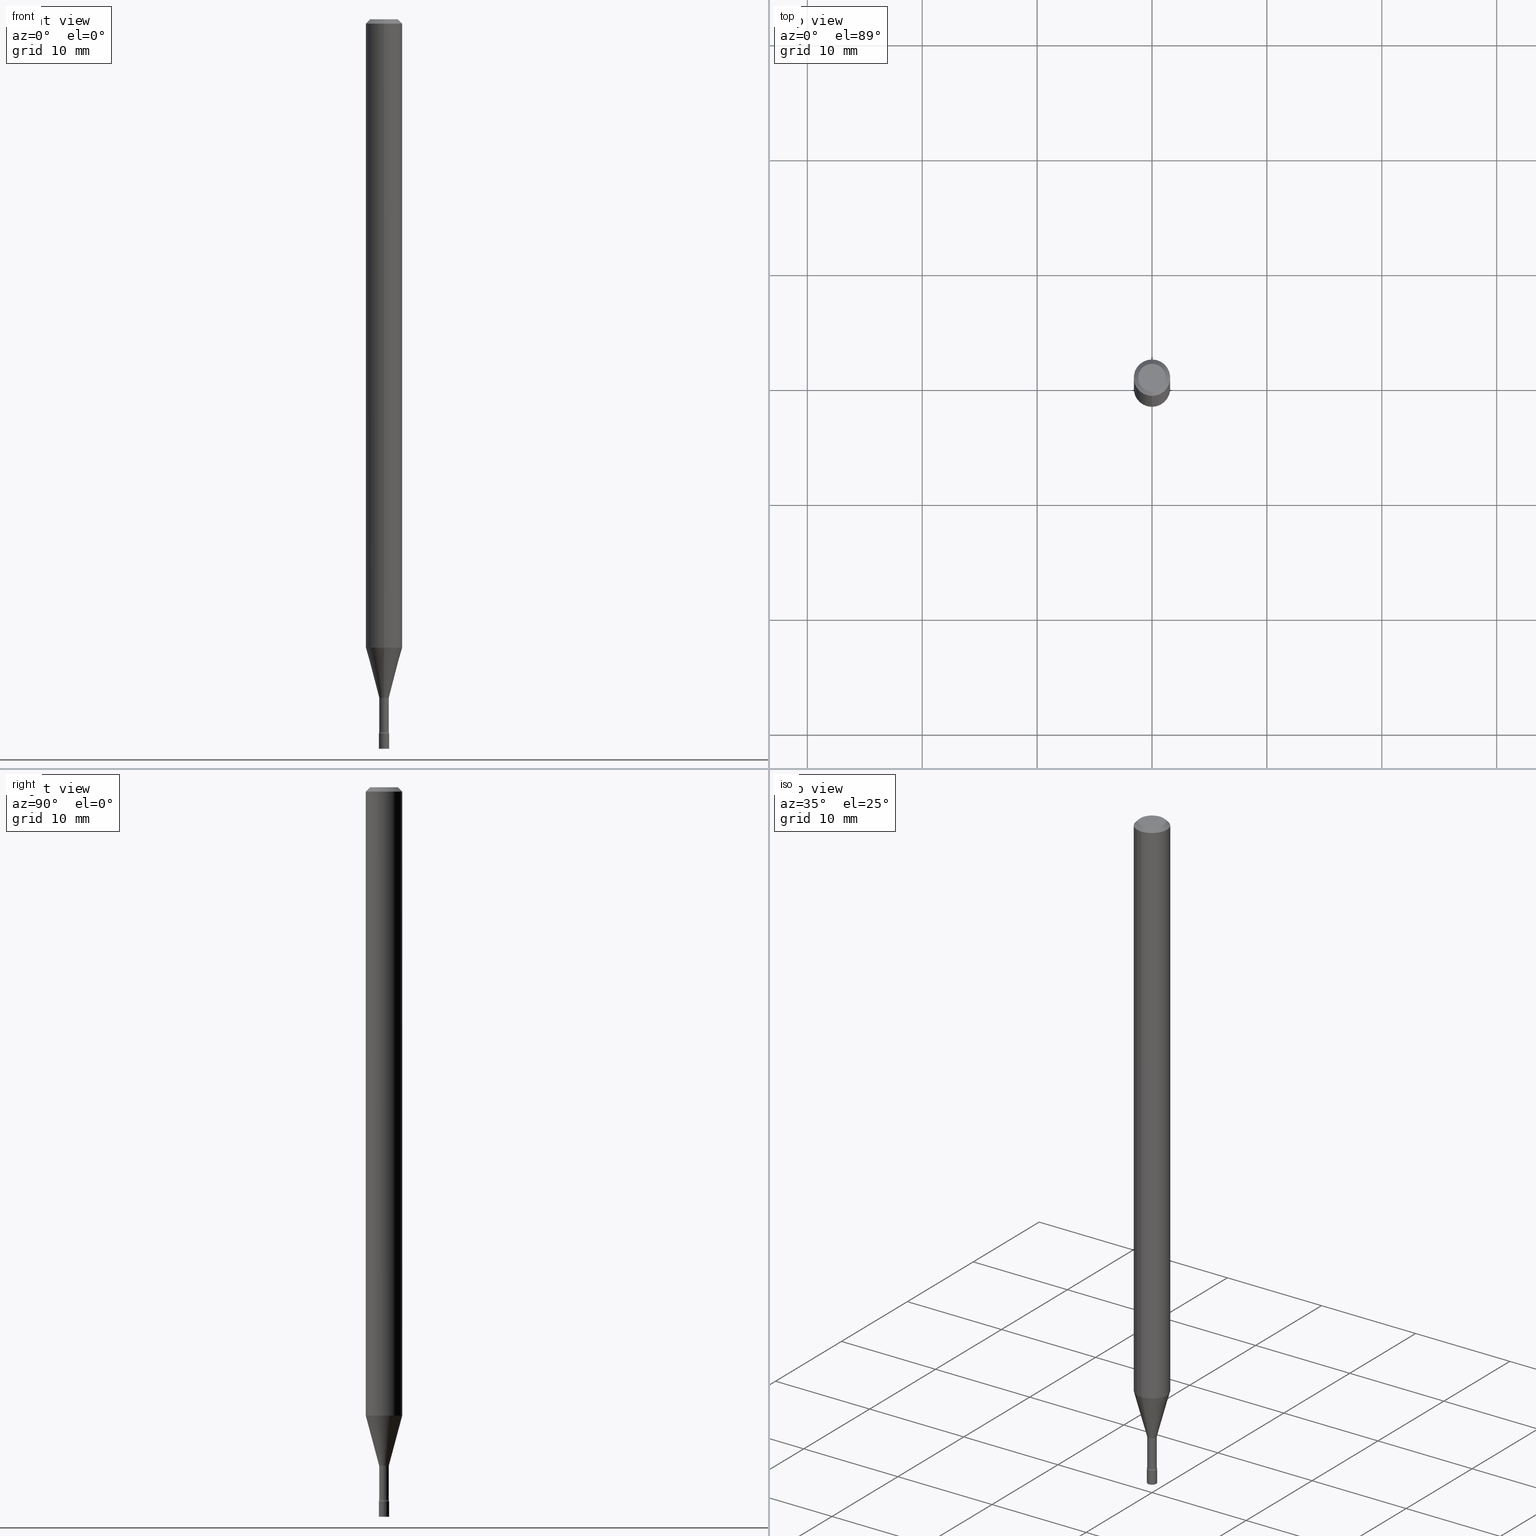
[diagram: canonical four-view strip — front | top / right | iso, engineering-drawing reading convention]
A machine part, canonical four-view strip (front | top / right | iso — engineering-drawing reading convention). The complete STEP part file that produces these views, byte-faithful:
ISO-10303-21;
HEADER;
FILE_DESCRIPTION (( 'STEP AP203' ),
    '1' );
FILE_NAME ('03541.STEP',
    '2024-03-08T21:43:57',
    ( '' ),
    ( '' ),
    'SwSTEP 2.0',
    'SolidWorks 2023',
    '' );
FILE_SCHEMA (( 'CONFIG_CONTROL_DESIGN' ));
ENDSEC;

DATA;
#1 = DIRECTION ( 'NONE',  ( -6.982962677686265922E-15, -1.000000000000000000, 3.491470771135924375E-15 ) ) ;
#2 = DIRECTION ( 'NONE',  ( -2.445468806185136597E-29, 3.491481338843145583E-15, 1.000000000000000000 ) ) ;
#3 = CARTESIAN_POINT ( 'NONE',  ( -4.364351673553912750E-16, -0.06250000000000005551, -0.01499999999999981209 ) ) ;
#4 = DIRECTION ( 'NONE',  ( -2.445476185575647876E-29, 3.491470771135924769E-15, 1.000000000000000000 ) ) ;
#5 = EDGE_CURVE ( 'NONE', #127, #144, #159, .T. ) ;
#6 = DIRECTION ( 'NONE',  ( -6.982962677686266711E-15, -1.000000000000000000, 3.491470771135925164E-15 ) ) ;
#7 = VECTOR ( 'NONE', #475, 39.37007874015748143 ) ;
#8 = DIRECTION ( 'NONE',  ( -6.982962677686265922E-15, -1.000000000000000000, 4.370956789862821150E-15 ) ) ;
#9 = ORIENTED_EDGE ( 'NONE', *, *, #43, .F. ) ;
#10 = APPROVAL ( #152, 'UNSPECIFIED' ) ;
#11 = DIRECTION ( 'NONE',  ( -2.445476185575647876E-29, 3.491470771135924769E-15, 1.000000000000000000 ) ) ;
#12 = ORIENTED_EDGE ( 'NONE', *, *, #337, .T. ) ;
#13 = PLANE ( 'NONE',  #517 ) ;
#14 = CIRCLE ( 'NONE', #182, 0.06250000000000000000 ) ;
#15 = CARTESIAN_POINT ( 'NONE',  ( -4.287811248607203282E-16, -0.06250000000000005551, -0.01499999999999981209 ) ) ;
#16 = CIRCLE ( 'NONE', #155, 0.01750000000000000167 ) ;
#17 = DIRECTION ( 'NONE',  ( 6.982962677686265922E-15, 1.000000000000000000, -3.483106191921935554E-15 ) ) ;
#18 = EDGE_LOOP ( 'NONE', ( #300, #107, #12, #484 ) ) ;
#19 = CARTESIAN_POINT ( 'NONE',  ( 0.000000000000000000, 0.000000000000000000, 0.000000000000000000 ) ) ;
#20 = CC_DESIGN_DATE_AND_TIME_ASSIGNMENT ( #503, #312, ( #372 ) ) ;
#21 = EDGE_LOOP ( 'NONE', ( #505, #139 ) ) ;
#22 = ORIENTED_EDGE ( 'NONE', *, *, #442, .F. ) ;
#23 = PERSON_AND_ORGANIZATION_ROLE ( 'creator' ) ;
#24 = ORIENTED_EDGE ( 'NONE', *, *, #392, .F. ) ;
#25 = CC_DESIGN_PERSON_AND_ORGANIZATION_ASSIGNMENT ( #148, #234, ( #508 ) ) ;
#26 = CARTESIAN_POINT ( 'NONE',  ( 7.070950815208551376E-46, -1.009538274838240143E-31, -2.891441289396199718E-17 ) ) ;
#27 = CALENDAR_DATE ( 2024, 8, 3 ) ;
#28 = DIRECTION ( 'NONE',  ( 1.000000000000000000, -6.982962677686303787E-15, 0.000000000000000000 ) ) ;
#29 = AXIS2_PLACEMENT_3D ( 'NONE', #479, #399, #1 ) ;
#30 = COORDINATED_UNIVERSAL_TIME_OFFSET ( 5, 0, .BEHIND. ) ;
#31 = CARTESIAN_POINT ( 'NONE',  ( -3.773273898774340269E-16, -0.04749999999999999362, 1.369304487349944422E-16 ) ) ;
#32 = ORIENTED_EDGE ( 'NONE', *, *, #418, .T. ) ;
#33 = FACE_OUTER_BOUND ( 'NONE', #374, .T. ) ;
#34 = CC_DESIGN_DATE_AND_TIME_ASSIGNMENT ( #224, #377, ( #370 ) ) ;
#35 = CARTESIAN_POINT ( 'NONE',  ( 4.440892098501149768E-16, 0.06249999999999247130, -2.153139060311453967 ) ) ;
#36 = DIRECTION ( 'NONE',  ( -6.982962677686265922E-15, -1.000000000000000000, 3.483106191921935554E-15 ) ) ;
#37 = VECTOR ( 'NONE', #168, 39.37007874015748143 ) ;
#38 = CLOSED_SHELL ( 'NONE', ( #417, #514, #518, #315, #272, #282, #53, #158, #421, #94, #396, #286, #196, #306 ) ) ;
#39 = CC_DESIGN_APPROVAL ( #298, ( #372 ) ) ;
#40 = DIRECTION ( 'NONE',  ( 1.000000000000000000, -6.982962677686248567E-15, 0.000000000000000000 ) ) ;
#41 = CYLINDRICAL_SURFACE ( 'NONE', #309, 0.01645000000000002710 ) ;
#42 = LINE ( 'NONE', #209, #244 ) ;
#43 = EDGE_CURVE ( 'NONE', #127, #129, #326, .T. ) ;
#44 = ORIENTED_EDGE ( 'NONE', *, *, #132, .T. ) ;
#45 = CARTESIAN_POINT ( 'NONE',  ( -1.148697360479392489E-16, -0.01645000000000002710, 5.743469418518606024E-17 ) ) ;
#46 = ORIENTED_EDGE ( 'NONE', *, *, #151, .F. ) ;
#47 = DIRECTION ( 'NONE',  ( -6.982962677686265133E-15, -1.000000000000000000, 3.491470771135924769E-15 ) ) ;
#48 = AXIS2_PLACEMENT_3D ( 'NONE', #283, #440, #436 ) ;
#49 = ORIENTED_EDGE ( 'NONE', *, *, #217, .T. ) ;
#50 = CARTESIAN_POINT ( 'NONE',  ( 4.440892098500625669E-16, 0.06250000000000000000, -2.182169231959952734E-16 ) ) ;
#51 = ORIENTED_EDGE ( 'NONE', *, *, #428, .T. ) ;
#52 = VERTEX_POINT ( 'NONE', #313 ) ;
#53 = ADVANCED_FACE ( 'NONE', ( #425 ), #67, .T. ) ;
#54 = CYLINDRICAL_SURFACE ( 'NONE', #96, 0.01645000000000002710 ) ;
#55 = FACE_OUTER_BOUND ( 'NONE', #72, .T. ) ;
#56 = AXIS2_PLACEMENT_3D ( 'NONE', #412, #497, #487 ) ;
#57 = AXIS2_PLACEMENT_3D ( 'NONE', #119, #470, #232 ) ;
#58 = DIRECTION ( 'NONE',  ( 7.105427357601000281E-15, 1.000000000000000000, 0.000000000000000000 ) ) ;
#59 = EDGE_CURVE ( 'NONE', #403, #71, #391, .T. ) ;
#60 = DIRECTION ( 'NONE',  ( -6.982962677686266711E-15, -1.000000000000000000, 0.000000000000000000 ) ) ;
#61 = EDGE_LOOP ( 'NONE', ( #364, #219, #443, #216 ) ) ;
#62 = APPLICATION_CONTEXT ( 'configuration controlled 3d designs of mechanical parts and assemblies' ) ;
#63 = CALENDAR_DATE ( 2024, 8, 3 ) ;
#64 = APPLICATION_PROTOCOL_DEFINITION ( 'international standard', 'config_control_design', 1994, #62 ) ;
#65 = VERTEX_POINT ( 'NONE', #31 ) ;
#66 = VECTOR ( 'NONE', #165, 39.37007874015748143 ) ;
#67 = CONICAL_SURFACE ( 'NONE', #198, 0.01696111260566397771, 0.2617993877991496299 ) ;
#68 = AXIS2_PLACEMENT_3D ( 'NONE', #223, #247, #449 ) ;
#69 =( NAMED_UNIT ( * ) PLANE_ANGLE_UNIT ( ) SI_UNIT ( $, .RADIAN. ) );
#70 = DIRECTION ( 'NONE',  ( -2.445476185575647876E-29, 3.491470771135924769E-15, 1.000000000000000000 ) ) ;
#71 = VERTEX_POINT ( 'NONE', #254 ) ;
#72 = EDGE_LOOP ( 'NONE', ( #339, #481, #191, #378 ) ) ;
#73 = CIRCLE ( 'NONE', #270, 0.01645000000000005833 ) ;
#74 = APPROVAL ( #420, 'UNSPECIFIED' ) ;
#75 = CARTESIAN_POINT ( 'NONE',  ( 7.070950815208551376E-46, -1.009538274838240143E-31, -2.891441289396199718E-17 ) ) ;
#76 = PERSON ( 'UNSPECIFIED', 'UNSPECIFIED', 'UNSPECIFIED', ('UNSPECIFIED'), ('UNSPECIFIED'), ('UNSPECIFIED') ) ;
#77 = DIRECTION ( 'NONE',  ( -6.982962677686265133E-15, -1.000000000000000000, 3.491470771135924769E-15 ) ) ;
#78 = PLANE ( 'NONE',  #222 ) ;
#79 = CC_DESIGN_APPROVAL ( #10, ( #333 ) ) ;
#80 = EDGE_CURVE ( 'NONE', #233, #251, #137, .T. ) ;
#81 = LOCAL_TIME ( 16, 43, 57.00000000000000000, #149 ) ;
#82 = FACE_OUTER_BOUND ( 'NONE', #61, .T. ) ;
#83 = FACE_OUTER_BOUND ( 'NONE', #345, .T. ) ;
#84 = EDGE_LOOP ( 'NONE', ( #458, #44, #213, #24 ) ) ;
#85 = DIRECTION ( 'NONE',  ( -2.445468806185136877E-29, 3.491481338843145188E-15, 1.000000000000000000 ) ) ;
#86 = DIRECTION ( 'NONE',  ( -2.445468806185136597E-29, 3.491481338843145583E-15, 1.000000000000000000 ) ) ;
#87 = AXIS2_PLACEMENT_3D ( 'NONE', #111, #150, #157 ) ;
#88 = ORIENTED_EDGE ( 'NONE', *, *, #43, .T. ) ;
#89 = CARTESIAN_POINT ( 'NONE',  ( -2.196141762131761410E-16, -0.03145000000000811730, -2.326974787463811367 ) ) ;
#90 = EDGE_CURVE ( 'NONE', #233, #264, #73, .T. ) ;
#91 = FACE_OUTER_BOUND ( 'NONE', #461, .T. ) ;
#92 = CARTESIAN_POINT ( 'NONE',  ( -4.364351673553390622E-16, -0.06250000000000753564, -2.153139060311453079 ) ) ;
#93 = ORIENTED_EDGE ( 'NONE', *, *, #408, .T. ) ;
#94 = ADVANCED_FACE ( 'NONE', ( #303 ), #381, .F. ) ;
#95 = DIRECTION ( 'NONE',  ( -6.982962677686265133E-15, -1.000000000000000000, 3.491470771135924769E-15 ) ) ;
#96 = AXIS2_PLACEMENT_3D ( 'NONE', #218, #375, #47 ) ;
#97 = EDGE_LOOP ( 'NONE', ( #122, #250, #362, #446 ) ) ;
#98 = PERSON_AND_ORGANIZATION_ROLE ( 'classification_officer' ) ;
#99 = ADVANCED_BREP_SHAPE_REPRESENTATION ( '03541', ( #382, #231, #205 ), #138 ) ;
#100 = SECURITY_CLASSIFICATION_LEVEL ( 'unclassified' ) ;
#101 = EDGE_CURVE ( 'NONE', #71, #403, #115, .T. ) ;
#102 = ORIENTED_EDGE ( 'NONE', *, *, #59, .F. ) ;
#103 = AXIS2_PLACEMENT_3D ( 'NONE', #176, #11, #95 ) ;
#104 = CIRCLE ( 'NONE', #281, 0.04749999999999999362 ) ;
#105 = LOCAL_TIME ( 16, 43, 57.00000000000000000, #30 ) ;
#106 = APPROVAL_ROLE ( '' ) ;
#107 = ORIENTED_EDGE ( 'NONE', *, *, #151, .T. ) ;
#108 = DESIGN_CONTEXT ( 'detailed design', #385, 'design' ) ;
#109 = ORIENTED_EDGE ( 'NONE', *, *, #405, .F. ) ;
#110 =( LENGTH_UNIT ( ) NAMED_UNIT ( * ) SI_UNIT ( $, .METRE. ) );
#111 = CARTESIAN_POINT ( 'NONE',  ( 3.316907271900976096E-16, 0.04749999999999999362, -1.803020680759374010E-16 ) ) ;
#112 = DIRECTION ( 'NONE',  ( -2.445476185575647876E-29, 3.491470771135924769E-15, 1.000000000000000000 ) ) ;
#113 = DIRECTION ( 'NONE',  ( -2.445476185575647876E-29, 3.491470771135924769E-15, 1.000000000000000000 ) ) ;
#114 = CC_DESIGN_PERSON_AND_ORGANIZATION_ASSIGNMENT ( #304, #23, ( #372 ) ) ;
#115 = CIRCLE ( 'NONE', #265, 0.01696111260566397771 ) ;
#116 = SHAPE_DEFINITION_REPRESENTATION ( #354, #99 ) ;
#117 = DIRECTION ( 'NONE',  ( -2.445476185575647876E-29, 3.491470771135924769E-15, 1.000000000000000000 ) ) ;
#118 = LINE ( 'NONE', #274, #37 ) ;
#119 = CARTESIAN_POINT ( 'NONE',  ( 0.000000000000000000, 0.000000000000000000, 0.000000000000000000 ) ) ;
#120 = EDGE_CURVE ( 'NONE', #491, #251, #409, .T. ) ;
#121 = DIRECTION ( 'NONE',  ( -2.445476185575647876E-29, 3.491470771135924769E-15, 1.000000000000000000 ) ) ;
#122 = ORIENTED_EDGE ( 'NONE', *, *, #473, .F. ) ;
#123 = TOROIDAL_SURFACE ( 'NONE', #103, 0.03144999999999999185, 0.01500000000000002373 ) ;
#124 = AXIS2_PLACEMENT_3D ( 'NONE', #318, #316, #241 ) ;
#125 = CARTESIAN_POINT ( 'NONE',  ( 5.681067390010129749E-29, -8.111009568635295199E-15, -2.323092501787273445 ) ) ;
#126 = CARTESIAN_POINT ( 'NONE',  ( -0.01750000000000000167, -8.511834112870504850E-15, -2.500000000000000000 ) ) ;
#127 = VERTEX_POINT ( 'NONE', #126 ) ;
#128 = CARTESIAN_POINT ( 'NONE',  ( 4.364351673553919652E-16, 0.06249999999999995143, -0.01500000000000024751 ) ) ;
#129 = VERTEX_POINT ( 'NONE', #249 ) ;
#130 = ORIENTED_EDGE ( 'NONE', *, *, #132, .F. ) ;
#131 = FACE_OUTER_BOUND ( 'NONE', #486, .T. ) ;
#132 = EDGE_CURVE ( 'NONE', #65, #342, #368, .T. ) ;
#133 = ORIENTED_EDGE ( 'NONE', *, *, #120, .F. ) ;
#134 = DIRECTION ( 'NONE',  ( -4.851104656540964275E-15, -0.7071067811865500152, -0.7071067811865450192 ) ) ;
#135 = CIRCLE ( 'NONE', #230, 0.01644999999999999588 ) ;
#136 = DIRECTION ( 'NONE',  ( 1.000000000000000000, -6.982962677686265922E-15, 4.876176775795936353E-29 ) ) ;
#137 = CIRCLE ( 'NONE', #492, 0.01499999999999995087 ) ;
#138 =( GEOMETRIC_REPRESENTATION_CONTEXT ( 3 ) GLOBAL_UNCERTAINTY_ASSIGNED_CONTEXT ( ( #269 ) ) GLOBAL_UNIT_ASSIGNED_CONTEXT ( ( #468, #69, #343 ) ) REPRESENTATION_CONTEXT ( 'NONE', 'WORKASPACE' ) );
#139 = ORIENTED_EDGE ( 'NONE', *, *, #225, .T. ) ;
#140 = DIRECTION ( 'NONE',  ( -2.445476185575647876E-29, 3.491470771135924769E-15, 1.000000000000000000 ) ) ;
#141 = DIMENSIONAL_EXPONENTS ( 1.000000000000000000, 0.000000000000000000, 0.000000000000000000, 0.000000000000000000, 0.000000000000000000, 0.000000000000000000, 0.000000000000000000 ) ;
#142 = EDGE_CURVE ( 'NONE', #71, #194, #437, .T. ) ;
#143 = DIRECTION ( 'NONE',  ( -2.445476185575647876E-29, 3.491470771135924769E-15, 1.000000000000000000 ) ) ;
#144 = VERTEX_POINT ( 'NONE', #373 ) ;
#145 = CARTESIAN_POINT ( 'NONE',  ( 3.668214278363478611E-31, -5.237206156703897582E-17, -0.01500000000000003067 ) ) ;
#146 = CONICAL_SURFACE ( 'NONE', #499, 0.01696111260566397771, 0.2617993877991496299 ) ;
#147 = ORIENTED_EDGE ( 'NONE', *, *, #457, .T. ) ;
#148 = PERSON_AND_ORGANIZATION ( #76, #493 ) ;
#149 = COORDINATED_UNIVERSAL_TIME_OFFSET ( 5, 0, .BEHIND. ) ;
#150 = DIRECTION ( 'NONE',  ( 2.445476185575647596E-29, -3.491470771135924375E-15, -1.000000000000000000 ) ) ;
#151 = EDGE_CURVE ( 'NONE', #264, #233, #332, .T. ) ;
#152 = APPROVAL_STATUS ( 'not_yet_approved' ) ;
#153 = LOCAL_TIME ( 16, 43, 57.00000000000000000, #259 ) ;
#154 = LINE ( 'NONE', #465, #173 ) ;
#155 = AXIS2_PLACEMENT_3D ( 'NONE', #287, #86, #294 ) ;
#156 = PERSON_AND_ORGANIZATION ( #76, #493 ) ;
#157 = DIRECTION ( 'NONE',  ( 6.982962677686265922E-15, 1.000000000000000000, -3.491470771135924375E-15 ) ) ;
#158 = ADVANCED_FACE ( 'NONE', ( #416 ), #402, .T. ) ;
#159 = LINE ( 'NONE', #460, #163 ) ;
#160 = APPROVAL_DATE_TIME ( #506, #298 ) ;
#161 = ORIENTED_EDGE ( 'NONE', *, *, #482, .T. ) ;
#162 = FACE_OUTER_BOUND ( 'NONE', #171, .T. ) ;
#163 = VECTOR ( 'NONE', #208, 39.37007874015748143 ) ;
#164 = CONICAL_SURFACE ( 'NONE', #389, 0.06250000000000000000, 0.7853981633974483900 ) ;
#165 = DIRECTION ( 'NONE',  ( -2.445476185575647596E-29, 3.491470771135924375E-15, 1.000000000000000000 ) ) ;
#166 = FACE_OUTER_BOUND ( 'NONE', #21, .T. ) ;
#167 = ORIENTED_EDGE ( 'NONE', *, *, #5, .T. ) ;
#168 = DIRECTION ( 'NONE',  ( -2.445476185575647596E-29, 3.491470771135924375E-15, 1.000000000000000000 ) ) ;
#169 = DIRECTION ( 'NONE',  ( -6.982962677686265922E-15, -1.000000000000000000, 0.000000000000000000 ) ) ;
#170 = EDGE_LOOP ( 'NONE', ( #293, #49, #192, #109 ) ) ;
#171 = EDGE_LOOP ( 'NONE', ( #22, #9 ) ) ;
#172 = CIRCLE ( 'NONE', #227, 0.06250000000000000000 ) ;
#173 = VECTOR ( 'NONE', #426, 39.37007874015748143 ) ;
#174 = CARTESIAN_POINT ( 'NONE',  ( 5.265450296224388314E-29, -7.517622095268511377E-15, -2.153139060311453523 ) ) ;
#175 = CC_DESIGN_PERSON_AND_ORGANIZATION_ASSIGNMENT ( #314, #98, ( #370 ) ) ;
#176 = CARTESIAN_POINT ( 'NONE',  ( 5.690544255522038745E-29, -8.124589046388391174E-15, -2.326974787463811367 ) ) ;
#177 = ORIENTED_EDGE ( 'NONE', *, *, #344, .F. ) ;
#178 = DIRECTION ( 'NONE',  ( 1.000000000000000000, -7.105427357601001070E-15, 4.926315379124993940E-29 ) ) ;
#179 = AXIS2_PLACEMENT_3D ( 'NONE', #253, #383, #501 ) ;
#180 = DIRECTION ( 'NONE',  ( -1.807323732225325801E-15, -0.2588190451025175753, 0.9659258262890690894 ) ) ;
#181 = AXIS2_PLACEMENT_3D ( 'NONE', #296, #258, #60 ) ;
#182 = AXIS2_PLACEMENT_3D ( 'NONE', #444, #140, #8 ) ;
#183 = EDGE_CURVE ( 'NONE', #65, #411, #104, .T. ) ;
#184 = CARTESIAN_POINT ( 'NONE',  ( 5.690561427177704998E-29, -8.124564455600127919E-15, -2.326974787463811367 ) ) ;
#185 = ORIENTED_EDGE ( 'NONE', *, *, #344, .T. ) ;
#186 = EDGE_LOOP ( 'NONE', ( #235, #279, #387, #424 ) ) ;
#187 = EDGE_CURVE ( 'NONE', #477, #342, #154, .T. ) ;
#188 = DIRECTION ( 'NONE',  ( 1.000000000000000000, 0.000000000000000000, 0.000000000000000000 ) ) ;
#189 = TOROIDAL_SURFACE ( 'NONE', #445, 0.03144999999999999185, 0.01500000000000002373 ) ;
#190 = EDGE_LOOP ( 'NONE', ( #130, #177, #297, #51 ) ) ;
#191 = ORIENTED_EDGE ( 'NONE', *, *, #467, .F. ) ;
#192 = ORIENTED_EDGE ( 'NONE', *, *, #418, .F. ) ;
#193 = DIRECTION ( 'NONE',  ( -6.982962677686269077E-15, -1.000000000000000000, 0.000000000000000000 ) ) ;
#194 = VERTEX_POINT ( 'NONE', #516 ) ;
#195 = AXIS2_PLACEMENT_3D ( 'NONE', #19, #331, #136 ) ;
#196 = ADVANCED_FACE ( 'NONE', ( #319 ), #41, .T. ) ;
#197 = EDGE_LOOP ( 'NONE', ( #32, #510, #330, #308 ) ) ;
#198 = AXIS2_PLACEMENT_3D ( 'NONE', #323, #70, #386 ) ;
#199 = PERSON_AND_ORGANIZATION ( #76, #493 ) ;
#200 = DIRECTION ( 'NONE',  ( -1.000000000000000000, 6.982962677686265922E-15, -4.876176775795935793E-29 ) ) ;
#201 = LINE ( 'NONE', #45, #66 ) ;
#202 = TOROIDAL_SURFACE ( 'NONE', #179, 0.03145000000000001267, 0.01499999999999995261 ) ;
#203 = CC_DESIGN_APPROVAL ( #74, ( #370 ) ) ;
#204 = AXIS2_PLACEMENT_3D ( 'NONE', #469, #112, #390 ) ;
#205 = AXIS2_PLACEMENT_3D ( 'NONE', #236, #340, #188 ) ;
#206 = CARTESIAN_POINT ( 'NONE',  ( -1.222018468594496105E-16, -0.01750000000000851916, -2.447000000000000064 ) ) ;
#207 = DIRECTION ( 'NONE',  ( -6.982962677686266711E-15, -1.000000000000000000, 0.000000000000000000 ) ) ;
#208 = DIRECTION ( 'NONE',  ( -2.445468806185136877E-29, 3.491481338843145188E-15, 1.000000000000000000 ) ) ;
#209 = CARTESIAN_POINT ( 'NONE',  ( 0.01750000000000000167, -1.222018468595096625E-16, 8.533309357642889039E-31 ) ) ;
#210 = DIRECTION ( 'NONE',  ( -2.438088387897960049E-29, 3.491481338843145188E-15, 1.000000000000000000 ) ) ;
#211 = EDGE_CURVE ( 'NONE', #342, #52, #349, .T. ) ;
#212 = AXIS2_PLACEMENT_3D ( 'NONE', #89, #335, #495 ) ;
#213 = ORIENTED_EDGE ( 'NONE', *, *, #211, .T. ) ;
#214 = CYLINDRICAL_SURFACE ( 'NONE', #195, 0.01750000000000000167 ) ;
#215 = VERTEX_POINT ( 'NONE', #275 ) ;
#216 = ORIENTED_EDGE ( 'NONE', *, *, #467, .T. ) ;
#217 = EDGE_CURVE ( 'NONE', #403, #226, #434, .T. ) ;
#218 = CARTESIAN_POINT ( 'NONE',  ( 0.000000000000000000, 0.000000000000000000, 0.000000000000000000 ) ) ;
#219 = ORIENTED_EDGE ( 'NONE', *, *, #101, .F. ) ;
#220 = LOCAL_TIME ( 16, 43, 57.00000000000000000, #352 ) ;
#221 = DIRECTION ( 'NONE',  ( -2.445476185575647596E-29, 3.491470771135924375E-15, 1.000000000000000000 ) ) ;
#222 = AXIS2_PLACEMENT_3D ( 'NONE', #358, #433, #200 ) ;
#223 = CARTESIAN_POINT ( 'NONE',  ( 5.984080226103611058E-29, -8.543628976969608717E-15, -2.447000000000000064 ) ) ;
#224 = DATE_AND_TIME ( #63, #153 ) ;
#225 = EDGE_CURVE ( 'NONE', #144, #215, #480, .T. ) ;
#226 = VERTEX_POINT ( 'NONE', #35 ) ;
#227 = AXIS2_PLACEMENT_3D ( 'NONE', #174, #441, #327 ) ;
#228 = PERSON_AND_ORGANIZATION_ROLE ( 'creator' ) ;
#229 = AXIS2_PLACEMENT_3D ( 'NONE', #237, #2, #28 ) ;
#230 = AXIS2_PLACEMENT_3D ( 'NONE', #184, #410, #248 ) ;
#231 = MANIFOLD_SOLID_BREP ( 'Body-Move/Copy2[2]', #38 ) ;
#232 = DIRECTION ( 'NONE',  ( -6.982962677686265922E-15, -1.000000000000000000, 3.491470771135924375E-15 ) ) ;
#233 = VERTEX_POINT ( 'NONE', #520 ) ;
#234 = PERSON_AND_ORGANIZATION_ROLE ( 'design_owner' ) ;
#235 = ORIENTED_EDGE ( 'NONE', *, *, #217, .F. ) ;
#236 = CARTESIAN_POINT ( 'NONE',  ( 0.000000000000000000, 0.000000000000000000, 0.000000000000000000 ) ) ;
#237 = CARTESIAN_POINT ( 'NONE',  ( 6.113672015462842613E-29, -8.728703347107864943E-15, -2.500000000000000000 ) ) ;
#238 = APPROVAL_ROLE ( '' ) ;
#239 = FACE_OUTER_BOUND ( 'NONE', #170, .T. ) ;
#240 = DIRECTION ( 'NONE',  ( -2.445476185575647876E-29, 3.491470771135924769E-15, 1.000000000000000000 ) ) ;
#241 = DIRECTION ( 'NONE',  ( 1.000000000000000000, -6.982962677686265922E-15, 4.876176775795936353E-29 ) ) ;
#242 = CIRCLE ( 'NONE', #68, 0.01750000000000000167 ) ;
#243 = AXIS2_PLACEMENT_3D ( 'NONE', #321, #4, #169 ) ;
#244 = VECTOR ( 'NONE', #85, 39.37007874015748143 ) ;
#245 = CARTESIAN_POINT ( 'NONE',  ( 5.690544255522038745E-29, -8.124589046388391174E-15, -2.326974787463811367 ) ) ;
#246 = ADVANCED_FACE ( 'NONE', ( #162 ), #78, .T. ) ;
#247 = DIRECTION ( 'NONE',  ( -2.445476185575647876E-29, 3.491470771135924769E-15, 1.000000000000000000 ) ) ;
#248 = DIRECTION ( 'NONE',  ( -6.982962677686265922E-15, -1.000000000000000000, 0.000000000000000000 ) ) ;
#249 = CARTESIAN_POINT ( 'NONE',  ( 0.01750000000000000167, -8.850905193967374926E-15, -2.500000000000000000 ) ) ;
#250 = ORIENTED_EDGE ( 'NONE', *, *, #359, .T. ) ;
#251 = VERTEX_POINT ( 'NONE', #206 ) ;
#252 = PRODUCT_RELATED_PRODUCT_CATEGORY ( 'detail', '', ( #508 ) ) ;
#253 = CARTESIAN_POINT ( 'NONE',  ( 5.970579338663442113E-29, -8.524404928127174921E-15, -2.441486607215153537 ) ) ;
#254 = CARTESIAN_POINT ( 'NONE',  ( -1.184388162973287936E-16, -0.01696111260567208581, -2.323092501787273445 ) ) ;
#255 = FACE_OUTER_BOUND ( 'NONE', #310, .T. ) ;
#256 = DIRECTION ( 'NONE',  ( 2.445476185575647876E-29, -3.491470771135924769E-15, -1.000000000000000000 ) ) ;
#257 = AXIS2_PLACEMENT_3D ( 'NONE', #476, #210, #363 ) ;
#258 = DIRECTION ( 'NONE',  ( -2.445476185575647876E-29, 3.491470771135924769E-15, 1.000000000000000000 ) ) ;
#259 = COORDINATED_UNIVERSAL_TIME_OFFSET ( 5, 0, .BEHIND. ) ;
#260 = ADVANCED_FACE ( 'NONE', ( #404 ), #515, .T. ) ;
#261 = PERSON_AND_ORGANIZATION ( #76, #493 ) ;
#262 = EDGE_LOOP ( 'NONE', ( #466, #167, #288, #341 ) ) ;
#263 = AXIS2_PLACEMENT_3D ( 'NONE', #75, #472, #6 ) ;
#264 = VERTEX_POINT ( 'NONE', #324 ) ;
#265 = AXIS2_PLACEMENT_3D ( 'NONE', #305, #507, #207 ) ;
#266 = APPROVAL_PERSON_ORGANIZATION ( #156, #298, #106 ) ;
#267 = ORIENTED_EDGE ( 'NONE', *, *, #120, .T. ) ;
#268 = MECHANICAL_CONTEXT ( 'NONE', #62, 'mechanical' ) ;
#269 = UNCERTAINTY_MEASURE_WITH_UNIT (LENGTH_MEASURE( 1.000000000000000082E-05 ), #468, 'distance_accuracy_value', 'NONE');
#270 = AXIS2_PLACEMENT_3D ( 'NONE', #429, #502, #504 ) ;
#271 = DIRECTION ( 'NONE',  ( -6.982962677686265133E-15, -1.000000000000000000, 3.491470771135924769E-15 ) ) ;
#272 = ADVANCED_FACE ( 'NONE', ( #355 ), #471, .T. ) ;
#273 = CARTESIAN_POINT ( 'NONE',  ( 3.668214278363478611E-31, -5.237206156703897582E-17, -0.01500000000000003067 ) ) ;
#274 = CARTESIAN_POINT ( 'NONE',  ( 1.168842800325366485E-16, 0.01645000000000002710, -5.743469418518606024E-17 ) ) ;
#275 = CARTESIAN_POINT ( 'NONE',  ( 0.01750000000000000167, -8.665856683008687659E-15, -2.447000000000000064 ) ) ;
#276 = ADVANCED_FACE ( 'NONE', ( #166 ), #320, .T. ) ;
#277 = DIRECTION ( 'NONE',  ( -6.982962677686266711E-15, -1.000000000000000000, 0.000000000000000000 ) ) ;
#278 = CIRCLE ( 'NONE', #263, 0.04749999999999999362 ) ;
#279 = ORIENTED_EDGE ( 'NONE', *, *, #59, .T. ) ;
#280 = DIRECTION ( 'NONE',  ( -2.445468806185136597E-29, 3.491481338843145583E-15, 1.000000000000000000 ) ) ;
#281 = AXIS2_PLACEMENT_3D ( 'NONE', #26, #113, #419 ) ;
#282 = ADVANCED_FACE ( 'NONE', ( #239 ), #146, .T. ) ;
#283 = CARTESIAN_POINT ( 'NONE',  ( 5.970579338663442113E-29, -8.524404928127174921E-15, -2.441486607215153537 ) ) ;
#284 = ORIENTED_EDGE ( 'NONE', *, *, #142, .F. ) ;
#285 = FACE_OUTER_BOUND ( 'NONE', #84, .T. ) ;
#286 = ADVANCED_FACE ( 'NONE', ( #83 ), #365, .F. ) ;
#287 = CARTESIAN_POINT ( 'NONE',  ( 6.113672015462842613E-29, -8.728703347107864943E-15, -2.500000000000000000 ) ) ;
#288 = ORIENTED_EDGE ( 'NONE', *, *, #431, .F. ) ;
#289 = ORIENTED_EDGE ( 'NONE', *, *, #500, .F. ) ;
#290 = CONICAL_SURFACE ( 'NONE', #414, 0.06250000000000000000, 0.7853981633974483900 ) ;
#291 = CIRCLE ( 'NONE', #478, 0.01499999999999995087 ) ;
#292 = CARTESIAN_POINT ( 'NONE',  ( 1.243449787580772020E-16, 0.01749999999999143213, -2.447000000000000064 ) ) ;
#293 = ORIENTED_EDGE ( 'NONE', *, *, #101, .T. ) ;
#294 = DIRECTION ( 'NONE',  ( 1.000000000000000000, -6.982962677686303787E-15, 0.000000000000000000 ) ) ;
#295 = CARTESIAN_POINT ( 'NONE',  ( -1.184388162973287936E-16, -0.01696111260567208581, -2.323092501787273445 ) ) ;
#296 = CARTESIAN_POINT ( 'NONE',  ( 5.970597355346543872E-29, -8.524379127211526625E-15, -2.441486607215153537 ) ) ;
#297 = ORIENTED_EDGE ( 'NONE', *, *, #392, .T. ) ;
#298 = APPROVAL ( #302, 'UNSPECIFIED' ) ;
#299 = CARTESIAN_POINT ( 'NONE',  ( 5.690561427177704998E-29, -8.124564455600127919E-15, -2.326974787463811367 ) ) ;
#300 = ORIENTED_EDGE ( 'NONE', *, *, #351, .F. ) ;
#301 = ORIENTED_EDGE ( 'NONE', *, *, #80, .T. ) ;
#302 = APPROVAL_STATUS ( 'not_yet_approved' ) ;
#303 = FACE_OUTER_BOUND ( 'NONE', #423, .T. ) ;
#304 = PERSON_AND_ORGANIZATION ( #76, #493 ) ;
#305 = CARTESIAN_POINT ( 'NONE',  ( 5.681067390010129749E-29, -8.111009568635295199E-15, -2.323092501787273445 ) ) ;
#306 = ADVANCED_FACE ( 'NONE', ( #82 ), #189, .F. ) ;
#307 = DATE_AND_TIME ( #27, #81 ) ;
#308 = ORIENTED_EDGE ( 'NONE', *, *, #187, .F. ) ;
#309 = AXIS2_PLACEMENT_3D ( 'NONE', #317, #117, #77 ) ;
#310 = EDGE_LOOP ( 'NONE', ( #407, #88, #447, #376 ) ) ;
#311 = CIRCLE ( 'NONE', #519, 0.01644999999999999588 ) ;
#312 = DATE_TIME_ROLE ( 'creation_date' ) ;
#313 = CARTESIAN_POINT ( 'NONE',  ( 4.440892098501155685E-16, 0.06249999999999993755, -0.01500000000000024751 ) ) ;
#314 = PERSON_AND_ORGANIZATION ( #76, #493 ) ;
#315 = ADVANCED_FACE ( 'NONE', ( #285 ), #164, .T. ) ;
#316 = DIRECTION ( 'NONE',  ( -2.445468806185136597E-29, 3.491481338843145583E-15, 1.000000000000000000 ) ) ;
#317 = CARTESIAN_POINT ( 'NONE',  ( 0.000000000000000000, 0.000000000000000000, 0.000000000000000000 ) ) ;
#318 = CARTESIAN_POINT ( 'NONE',  ( 0.000000000000000000, 0.000000000000000000, 0.000000000000000000 ) ) ;
#319 = FACE_OUTER_BOUND ( 'NONE', #18, .T. ) ;
#320 = PLANE ( 'NONE',  #257 ) ;
#321 = CARTESIAN_POINT ( 'NONE',  ( 5.984080226103611058E-29, -8.543628976969608717E-15, -2.447000000000000064 ) ) ;
#322 = EDGE_CURVE ( 'NONE', #129, #215, #42, .T. ) ;
#323 = CARTESIAN_POINT ( 'NONE',  ( 5.681067390010129749E-29, -8.111009568635295199E-15, -2.323092501787273445 ) ) ;
#324 = CARTESIAN_POINT ( 'NONE',  ( 1.206146293953368157E-16, 0.01644999999999153389, -2.441486607215153537 ) ) ;
#325 = CIRCLE ( 'NONE', #453, 0.01750000000000000167 ) ;
#326 = CIRCLE ( 'NONE', #229, 0.01750000000000000167 ) ;
#327 = DIRECTION ( 'NONE',  ( -6.982962677686265922E-15, -1.000000000000000000, 4.370956789862821150E-15 ) ) ;
#328 = VERTEX_POINT ( 'NONE', #361 ) ;
#329 = CARTESIAN_POINT ( 'NONE',  ( 3.840629472727447874E-16, 0.04749999999999999362, -1.947592745229183872E-16 ) ) ;
#330 = ORIENTED_EDGE ( 'NONE', *, *, #211, .F. ) ;
#331 = DIRECTION ( 'NONE',  ( -2.445468806185136597E-29, 3.491481338843145583E-15, 1.000000000000000000 ) ) ;
#332 = CIRCLE ( 'NONE', #181, 0.01645000000000005833 ) ;
#333 = PRODUCT_DEFINITION_FORMATION_WITH_SPECIFIED_SOURCE ( 'ANY', '', #508, .NOT_KNOWN. ) ;
#334 = LINE ( 'NONE', #295, #448 ) ;
#335 = DIRECTION ( 'NONE',  ( -1.000000000000000000, 6.982962677686265922E-15, -4.883557194083112901E-29 ) ) ;
#336 = CARTESIAN_POINT ( 'NONE',  ( 5.984062168735030320E-29, -8.543654836149177676E-15, -2.447000000000000064 ) ) ;
#337 = EDGE_CURVE ( 'NONE', #233, #194, #201, .T. ) ;
#338 = DIRECTION ( 'NONE',  ( -6.982962677686265922E-15, -1.000000000000000000, 3.491470771135924375E-15 ) ) ;
#339 = ORIENTED_EDGE ( 'NONE', *, *, #90, .T. ) ;
#340 = DIRECTION ( 'NONE',  ( 0.000000000000000000, 0.000000000000000000, 1.000000000000000000 ) ) ;
#341 = ORIENTED_EDGE ( 'NONE', *, *, #322, .F. ) ;
#342 = VERTEX_POINT ( 'NONE', #3 ) ;
#343 =( NAMED_UNIT ( * ) SI_UNIT ( $, .STERADIAN. ) SOLID_ANGLE_UNIT ( ) );
#344 = EDGE_CURVE ( 'NONE', #411, #65, #278, .T. ) ;
#345 = EDGE_LOOP ( 'NONE', ( #490, #498, #301, #438 ) ) ;
#346 = ORIENTED_EDGE ( 'NONE', *, *, #183, .T. ) ;
#347 = CIRCLE ( 'NONE', #56, 0.01500000000000002720 ) ;
#348 = PERSON_AND_ORGANIZATION_ROLE ( 'design_supplier' ) ;
#349 = CIRCLE ( 'NONE', #369, 0.06250000000000000000 ) ;
#350 = APPROVAL_ROLE ( '' ) ;
#351 = EDGE_CURVE ( 'NONE', #264, #328, #118, .T. ) ;
#352 = COORDINATED_UNIVERSAL_TIME_OFFSET ( 5, 0, .BEHIND. ) ;
#353 = DIRECTION ( 'NONE',  ( 2.445476185575647876E-29, -3.491470771135924769E-15, -1.000000000000000000 ) ) ;
#354 = PRODUCT_DEFINITION_SHAPE ( 'NONE', 'NONE',  #372 ) ;
#355 = FACE_OUTER_BOUND ( 'NONE', #197, .T. ) ;
#356 = VECTOR ( 'NONE', #134, 39.37007874015748143 ) ;
#357 = DATE_AND_TIME ( #397, #220 ) ;
#358 = CARTESIAN_POINT ( 'NONE',  ( 1.222018468595707746E-16, 0.01749999999999127254, -2.500000000000000000 ) ) ;
#359 = EDGE_CURVE ( 'NONE', #226, #477, #172, .T. ) ;
#360 = CARTESIAN_POINT ( 'NONE',  ( 5.984062168735030320E-29, -8.543654836149177676E-15, -2.447000000000000064 ) ) ;
#361 = CARTESIAN_POINT ( 'NONE',  ( 1.168842800325962814E-16, 0.01644999999999187043, -2.326974787463811367 ) ) ;
#362 = ORIENTED_EDGE ( 'NONE', *, *, #187, .T. ) ;
#363 = DIRECTION ( 'NONE',  ( 1.000000000000000000, -6.982962677686265922E-15, 4.876176775795935793E-29 ) ) ;
#364 = ORIENTED_EDGE ( 'NONE', *, *, #408, .F. ) ;
#365 = TOROIDAL_SURFACE ( 'NONE', #48, 0.03145000000000001267, 0.01499999999999995261 ) ;
#366 = CARTESIAN_POINT ( 'NONE',  ( 2.823025816869041542E-16, 0.01696111260565586962, -2.323092501787273445 ) ) ;
#367 = DIRECTION ( 'NONE',  ( -2.445476185575647596E-29, 3.491470771135924375E-15, 1.000000000000000000 ) ) ;
#368 = LINE ( 'NONE', #15, #356 ) ;
#369 = AXIS2_PLACEMENT_3D ( 'NONE', #273, #240, #36 ) ;
#370 = SECURITY_CLASSIFICATION ( '', '', #100 ) ;
#371 = DIRECTION ( 'NONE',  ( 1.000000000000000000, -6.982962677686248567E-15, 0.000000000000000000 ) ) ;
#372 = PRODUCT_DEFINITION ( 'UNKNOWN', '', #333, #108 ) ;
#373 = CARTESIAN_POINT ( 'NONE',  ( -0.01750000000000000167, -8.511834112870504850E-15, -2.447000000000000064 ) ) ;
#374 = EDGE_LOOP ( 'NONE', ( #289, #133 ) ) ;
#375 = DIRECTION ( 'NONE',  ( -2.445476185575647876E-29, 3.491470771135924769E-15, 1.000000000000000000 ) ) ;
#376 = ORIENTED_EDGE ( 'NONE', *, *, #225, .F. ) ;
#377 = DATE_TIME_ROLE ( 'classification_date' ) ;
#378 = ORIENTED_EDGE ( 'NONE', *, *, #337, .F. ) ;
#379 = CC_DESIGN_SECURITY_CLASSIFICATION ( #370, ( #333 ) ) ;
#380 = PERSON_AND_ORGANIZATION ( #76, #493 ) ;
#381 = PLANE ( 'NONE',  #87 ) ;
#382 = MANIFOLD_SOLID_BREP ( 'Body-Move/Copy2[1]', #422 ) ;
#383 = DIRECTION ( 'NONE',  ( -2.445476185575647876E-29, 3.491470771135924769E-15, 1.000000000000000000 ) ) ;
#384 = CALENDAR_DATE ( 2024, 8, 3 ) ;
#385 = APPLICATION_CONTEXT ( 'configuration controlled 3d designs of mechanical parts and assemblies' ) ;
#386 = DIRECTION ( 'NONE',  ( -6.982962677686266711E-15, -1.000000000000000000, 0.000000000000000000 ) ) ;
#387 = ORIENTED_EDGE ( 'NONE', *, *, #405, .T. ) ;
#388 = ORIENTED_EDGE ( 'NONE', *, *, #80, .F. ) ;
#389 = AXIS2_PLACEMENT_3D ( 'NONE', #395, #353, #430 ) ;
#390 = DIRECTION ( 'NONE',  ( -6.982962677686266711E-15, -1.000000000000000000, 0.000000000000000000 ) ) ;
#391 = CIRCLE ( 'NONE', #204, 0.01696111260566397771 ) ;
#392 = EDGE_CURVE ( 'NONE', #411, #52, #483, .T. ) ;
#393 = DIRECTION ( 'NONE',  ( 4.937700262164548042E-15, 0.7071067811865451302, -0.7071067811865499042 ) ) ;
#394 = DIRECTION ( 'NONE',  ( -1.000000000000000000, 6.982962677686265922E-15, -4.883557194083112901E-29 ) ) ;
#395 = CARTESIAN_POINT ( 'NONE',  ( 3.668214278363478611E-31, -5.237206156703897582E-17, -0.01500000000000003067 ) ) ;
#396 = ADVANCED_FACE ( 'NONE', ( #33 ), #13, .F. ) ;
#397 = CALENDAR_DATE ( 2024, 8, 3 ) ;
#398 = AXIS2_PLACEMENT_3D ( 'NONE', #494, #455, #485 ) ;
#399 = DIRECTION ( 'NONE',  ( -2.445476185575647876E-29, 3.491470771135924769E-15, 1.000000000000000000 ) ) ;
#400 = APPROVAL_PERSON_ORGANIZATION ( #199, #10, #350 ) ;
#401 = DIRECTION ( 'NONE',  ( -2.445476185575647876E-29, 3.491470771135924769E-15, 1.000000000000000000 ) ) ;
#402 = CYLINDRICAL_SURFACE ( 'NONE', #57, 0.06250000000000000000 ) ;
#403 = VERTEX_POINT ( 'NONE', #366 ) ;
#404 = FACE_OUTER_BOUND ( 'NONE', #262, .T. ) ;
#405 = EDGE_CURVE ( 'NONE', #71, #477, #334, .T. ) ;
#406 = DIRECTION ( 'NONE',  ( -2.445468806185136597E-29, 3.491481338843145583E-15, 1.000000000000000000 ) ) ;
#407 = ORIENTED_EDGE ( 'NONE', *, *, #5, .F. ) ;
#408 = EDGE_CURVE ( 'NONE', #403, #328, #347, .T. ) ;
#409 = CIRCLE ( 'NONE', #243, 0.01750000000000000167 ) ;
#410 = DIRECTION ( 'NONE',  ( -2.445476185575647876E-29, 3.491470771135924769E-15, 1.000000000000000000 ) ) ;
#411 = VERTEX_POINT ( 'NONE', #329 ) ;
#412 = CARTESIAN_POINT ( 'NONE',  ( 2.234656903966083471E-16, 0.03144999999999187335, -2.326974787463811367 ) ) ;
#413 = CARTESIAN_POINT ( 'NONE',  ( 2.234656903966112561E-16, 0.03144999999999148477, -2.441486607215153537 ) ) ;
#414 = AXIS2_PLACEMENT_3D ( 'NONE', #145, #256, #17 ) ;
#415 = DIRECTION ( 'NONE',  ( -6.982962677686265922E-15, -1.000000000000000000, 0.000000000000000000 ) ) ;
#416 = FACE_OUTER_BOUND ( 'NONE', #97, .T. ) ;
#417 = ADVANCED_FACE ( 'NONE', ( #131 ), #123, .F. ) ;
#418 = EDGE_CURVE ( 'NONE', #477, #226, #14, .T. ) ;
#419 = DIRECTION ( 'NONE',  ( -6.982962677686266711E-15, -1.000000000000000000, 3.491470771135925164E-15 ) ) ;
#420 = APPROVAL_STATUS ( 'not_yet_approved' ) ;
#421 = ADVANCED_FACE ( 'NONE', ( #496 ), #290, .T. ) ;
#422 = CLOSED_SHELL ( 'NONE', ( #260, #276, #489, #246 ) ) ;
#423 = EDGE_LOOP ( 'NONE', ( #185, #346 ) ) ;
#424 = ORIENTED_EDGE ( 'NONE', *, *, #359, .F. ) ;
#425 = FACE_OUTER_BOUND ( 'NONE', #186, .T. ) ;
#426 = DIRECTION ( 'NONE',  ( -2.445476185575647596E-29, 3.491470771135924375E-15, 1.000000000000000000 ) ) ;
#427 = CALENDAR_DATE ( 2024, 8, 3 ) ;
#428 = EDGE_CURVE ( 'NONE', #52, #342, #488, .T. ) ;
#429 = CARTESIAN_POINT ( 'NONE',  ( 5.970597355346543872E-29, -8.524379127211526625E-15, -2.441486607215153537 ) ) ;
#430 = DIRECTION ( 'NONE',  ( 6.982962677686265922E-15, 1.000000000000000000, -3.483106191921935554E-15 ) ) ;
#431 = EDGE_CURVE ( 'NONE', #215, #144, #325, .T. ) ;
#432 = APPROVAL_DATE_TIME ( #357, #74 ) ;
#433 = DIRECTION ( 'NONE',  ( 2.438088387897960049E-29, -3.491481338843145188E-15, -1.000000000000000000 ) ) ;
#434 = LINE ( 'NONE', #439, #7 ) ;
#435 = APPROVAL_PERSON_ORGANIZATION ( #261, #74, #238 ) ;
#436 = DIRECTION ( 'NONE',  ( -6.982962677686266711E-15, -1.000000000000000000, 3.491470771135924769E-15 ) ) ;
#437 = CIRCLE ( 'NONE', #212, 0.01500000000000001853 ) ;
#438 = ORIENTED_EDGE ( 'NONE', *, *, #500, .T. ) ;
#439 = CARTESIAN_POINT ( 'NONE',  ( 1.205159535236928139E-16, 0.01696111260565586615, -2.323092501787273445 ) ) ;
#440 = DIRECTION ( 'NONE',  ( -2.445476185575647876E-29, 3.491470771135924769E-15, 1.000000000000000000 ) ) ;
#441 = DIRECTION ( 'NONE',  ( -2.445476185575647876E-29, 3.491470771135924769E-15, 1.000000000000000000 ) ) ;
#442 = EDGE_CURVE ( 'NONE', #129, #127, #16, .T. ) ;
#443 = ORIENTED_EDGE ( 'NONE', *, *, #142, .T. ) ;
#444 = CARTESIAN_POINT ( 'NONE',  ( 5.265450296224388314E-29, -7.517622095268511377E-15, -2.153139060311453523 ) ) ;
#445 = AXIS2_PLACEMENT_3D ( 'NONE', #245, #401, #271 ) ;
#446 = ORIENTED_EDGE ( 'NONE', *, *, #428, .F. ) ;
#447 = ORIENTED_EDGE ( 'NONE', *, *, #322, .T. ) ;
#448 = VECTOR ( 'NONE', #180, 39.37007874015748854 ) ;
#449 = DIRECTION ( 'NONE',  ( -6.982962677686265922E-15, -1.000000000000000000, 0.000000000000000000 ) ) ;
#450 = CC_DESIGN_PERSON_AND_ORGANIZATION_ASSIGNMENT ( #456, #228, ( #333 ) ) ;
#451 = LINE ( 'NONE', #50, #464 ) ;
#452 = CARTESIAN_POINT ( 'NONE',  ( 1.222018468595694927E-16, 0.01749999999999145642, -2.447000000000000064 ) ) ;
#453 = AXIS2_PLACEMENT_3D ( 'NONE', #336, #406, #371 ) ;
#454 = AXIS2_PLACEMENT_3D ( 'NONE', #360, #280, #40 ) ;
#455 = DIRECTION ( 'NONE',  ( -2.445476185575647876E-29, 3.491470771135924769E-15, 1.000000000000000000 ) ) ;
#456 = PERSON_AND_ORGANIZATION ( #76, #493 ) ;
#457 = EDGE_CURVE ( 'NONE', #328, #194, #311, .T. ) ;
#458 = ORIENTED_EDGE ( 'NONE', *, *, #183, .F. ) ;
#459 = APPROVAL_DATE_TIME ( #307, #10 ) ;
#460 = CARTESIAN_POINT ( 'NONE',  ( -0.01750000000000000167, 1.243449787580175444E-16, -8.608136407946085539E-31 ) ) ;
#461 = EDGE_LOOP ( 'NONE', ( #46, #161, #267, #388 ) ) ;
#462 = LOCAL_TIME ( 16, 43, 57.00000000000000000, #513 ) ;
#463 = APPLICATION_PROTOCOL_DEFINITION ( 'international standard', 'config_control_design', 1994, #385 ) ;
#464 = VECTOR ( 'NONE', #221, 39.37007874015748143 ) ;
#465 = CARTESIAN_POINT ( 'NONE',  ( -4.364351673553916201E-16, -0.06250000000000000000, 2.182169231959952734E-16 ) ) ;
#466 = ORIENTED_EDGE ( 'NONE', *, *, #442, .T. ) ;
#467 = EDGE_CURVE ( 'NONE', #194, #328, #135, .T. ) ;
#468 =( CONVERSION_BASED_UNIT ( 'INCH', #512 ) LENGTH_UNIT ( ) NAMED_UNIT ( #141 ) );
#469 = CARTESIAN_POINT ( 'NONE',  ( 5.681067390010129749E-29, -8.111009568635295199E-15, -2.323092501787273445 ) ) ;
#470 = DIRECTION ( 'NONE',  ( -2.445476185575647876E-29, 3.491470771135924769E-15, 1.000000000000000000 ) ) ;
#471 = CYLINDRICAL_SURFACE ( 'NONE', #29, 0.06250000000000000000 ) ;
#472 = DIRECTION ( 'NONE',  ( -2.445476185575647876E-29, 3.491470771135924769E-15, 1.000000000000000000 ) ) ;
#473 = EDGE_CURVE ( 'NONE', #226, #52, #451, .T. ) ;
#474 = CARTESIAN_POINT ( 'NONE',  ( -2.196141762131734046E-16, -0.03145000000000853363, -2.441486607215153537 ) ) ;
#475 = DIRECTION ( 'NONE',  ( 1.839019923739595977E-15, 0.2588190451025243477, 0.9659258262890673130 ) ) ;
#476 = CARTESIAN_POINT ( 'NONE',  ( 5.984062168735030320E-29, -8.543654836149177676E-15, -2.447000000000000064 ) ) ;
#477 = VERTEX_POINT ( 'NONE', #92 ) ;
#478 = AXIS2_PLACEMENT_3D ( 'NONE', #413, #178, #58 ) ;
#479 = CARTESIAN_POINT ( 'NONE',  ( 0.000000000000000000, 0.000000000000000000, 0.000000000000000000 ) ) ;
#480 = CIRCLE ( 'NONE', #454, 0.01750000000000000167 ) ;
#481 = ORIENTED_EDGE ( 'NONE', *, *, #351, .T. ) ;
#482 = EDGE_CURVE ( 'NONE', #264, #491, #291, .T. ) ;
#483 = LINE ( 'NONE', #128, #511 ) ;
#484 = ORIENTED_EDGE ( 'NONE', *, *, #457, .F. ) ;
#485 = DIRECTION ( 'NONE',  ( -6.982962677686265922E-15, -1.000000000000000000, 3.483106191921935554E-15 ) ) ;
#486 = EDGE_LOOP ( 'NONE', ( #102, #93, #147, #284 ) ) ;
#487 = DIRECTION ( 'NONE',  ( 7.105427357600997914E-15, 1.000000000000000000, 0.000000000000000000 ) ) ;
#488 = CIRCLE ( 'NONE', #398, 0.06250000000000000000 ) ;
#489 = ADVANCED_FACE ( 'NONE', ( #255 ), #214, .T. ) ;
#490 = ORIENTED_EDGE ( 'NONE', *, *, #482, .F. ) ;
#491 = VERTEX_POINT ( 'NONE', #292 ) ;
#492 = AXIS2_PLACEMENT_3D ( 'NONE', #474, #394, #193 ) ;
#493 = ORGANIZATION ( 'UNSPECIFIED', 'UNSPECIFIED', '' ) ;
#494 = CARTESIAN_POINT ( 'NONE',  ( 3.668214278363478611E-31, -5.237206156703897582E-17, -0.01500000000000003067 ) ) ;
#495 = DIRECTION ( 'NONE',  ( -6.982962677686269077E-15, -1.000000000000000000, 0.000000000000000000 ) ) ;
#496 = FACE_OUTER_BOUND ( 'NONE', #190, .T. ) ;
#497 = DIRECTION ( 'NONE',  ( 1.000000000000000000, -7.105427357601001070E-15, 4.926315379124993940E-29 ) ) ;
#498 = ORIENTED_EDGE ( 'NONE', *, *, #90, .F. ) ;
#499 = AXIS2_PLACEMENT_3D ( 'NONE', #125, #121, #277 ) ;
#500 = EDGE_CURVE ( 'NONE', #251, #491, #242, .T. ) ;
#501 = DIRECTION ( 'NONE',  ( -6.982962677686266711E-15, -1.000000000000000000, 3.491470771135924769E-15 ) ) ;
#502 = DIRECTION ( 'NONE',  ( -2.445476185575647876E-29, 3.491470771135924769E-15, 1.000000000000000000 ) ) ;
#503 = DATE_AND_TIME ( #384, #105 ) ;
#504 = DIRECTION ( 'NONE',  ( -6.982962677686266711E-15, -1.000000000000000000, 0.000000000000000000 ) ) ;
#505 = ORIENTED_EDGE ( 'NONE', *, *, #431, .T. ) ;
#506 = DATE_AND_TIME ( #427, #462 ) ;
#507 = DIRECTION ( 'NONE',  ( -2.445476185575647876E-29, 3.491470771135924769E-15, 1.000000000000000000 ) ) ;
#508 = PRODUCT ( '03541', '03541', '', ( #268 ) ) ;
#509 = CC_DESIGN_PERSON_AND_ORGANIZATION_ASSIGNMENT ( #380, #348, ( #333 ) ) ;
#510 = ORIENTED_EDGE ( 'NONE', *, *, #473, .T. ) ;
#511 = VECTOR ( 'NONE', #393, 39.37007874015748143 ) ;
#512 = LENGTH_MEASURE_WITH_UNIT ( LENGTH_MEASURE( 0.02539999999999999897 ), #110 );
#513 = COORDINATED_UNIVERSAL_TIME_OFFSET ( 5, 0, .BEHIND. ) ;
#514 = ADVANCED_FACE ( 'NONE', ( #55 ), #54, .T. ) ;
#515 = CYLINDRICAL_SURFACE ( 'NONE', #124, 0.01750000000000000167 ) ;
#516 = CARTESIAN_POINT ( 'NONE',  ( -1.148697360478821551E-16, -0.01645000000000812132, -2.326974787463811367 ) ) ;
#517 = AXIS2_PLACEMENT_3D ( 'NONE', #452, #367, #338 ) ;
#518 = ADVANCED_FACE ( 'NONE', ( #91 ), #202, .F. ) ;
#519 = AXIS2_PLACEMENT_3D ( 'NONE', #299, #143, #415 ) ;
#520 = CARTESIAN_POINT ( 'NONE',  ( -1.148697360478797885E-16, -0.01645000000000858276, -2.441486607215153537 ) ) ;
ENDSEC;
END-ISO-10303-21;
